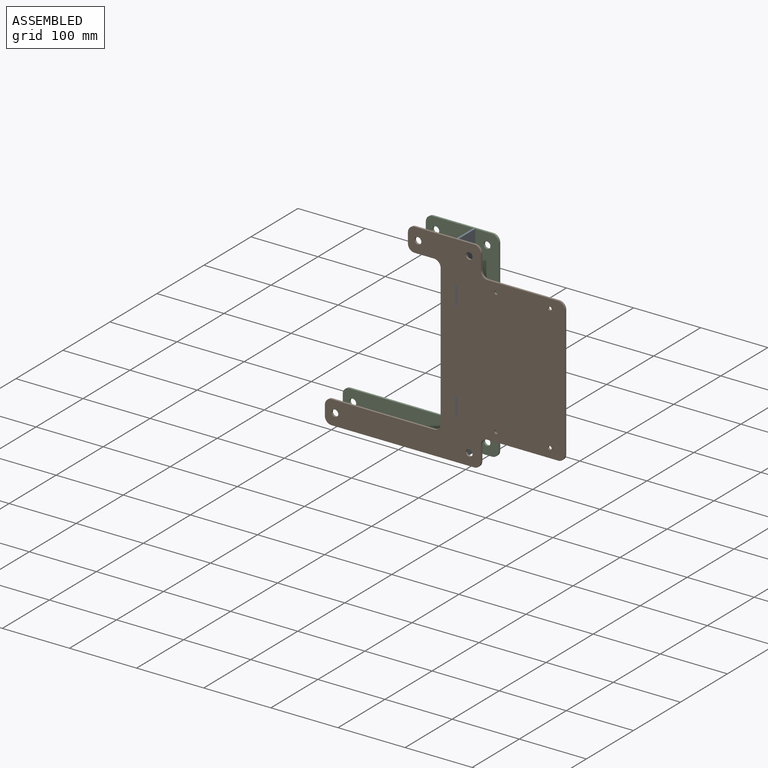
[diagram: assembled view]
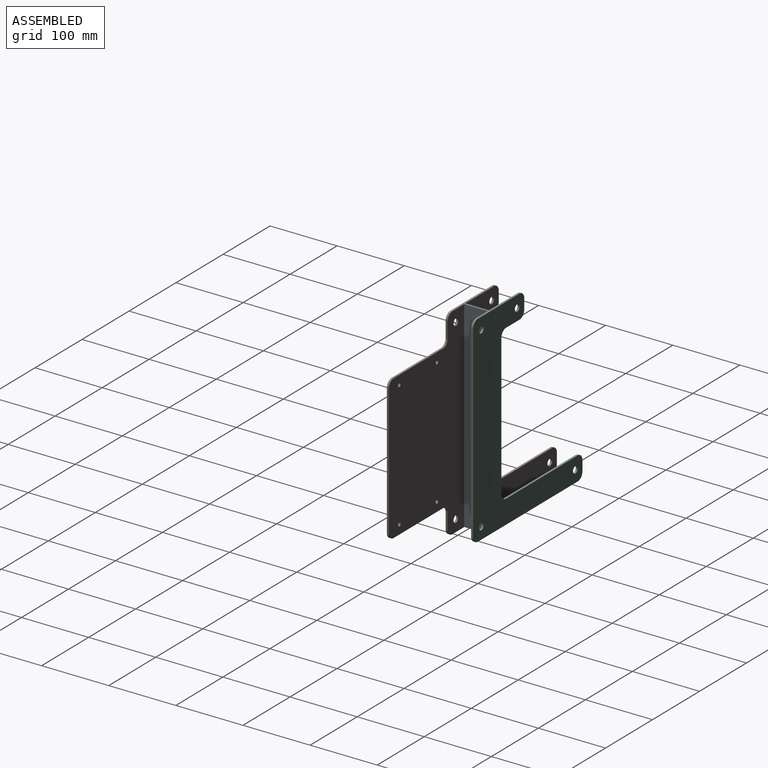
[diagram: assembled view, second angle]
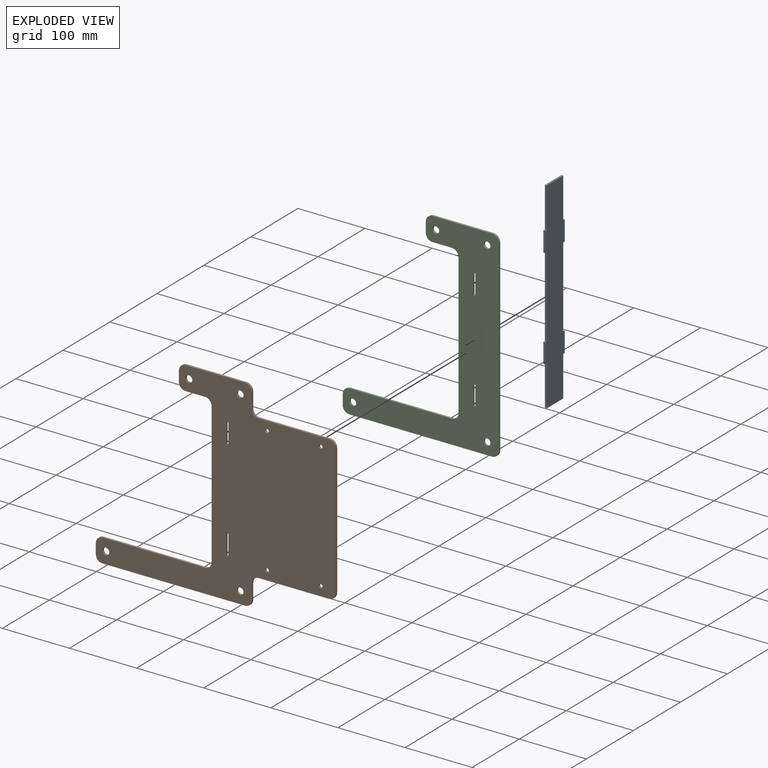
[diagram: exploded view]
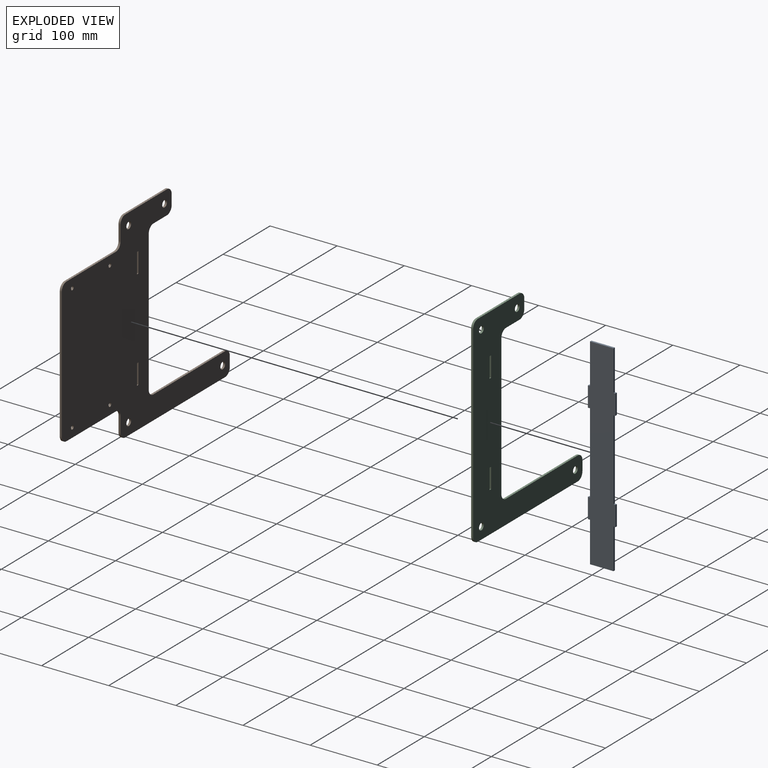
[diagram: exploded view, second angle]
ASSEMBLY  parts=3 mates=2
PART A: 22 faces, bbox 41x3x300 mm
  f0: plane 3x3mm, normal (0,0,1), area 9mm2, adj f1,f19,f20,f21
  f1: plane 30x3mm, normal (-1,0,0), area 90mm2, adj f0,f2,f20,f21
  f2: plane 3x3mm, normal (0,0,-1), area 9mm2, adj f1,f3,f20,f21
  f3: plane 60x3mm, normal (-1,0,0), area 180mm2, adj f2,f4,f20,f21
  f4: plane 35x3mm, normal (0,0,-1), area 105mm2, adj f3,f5,f20,f21
  f5: plane 60x3mm, normal (1,0,0), area 180mm2, adj f4,f6,f20,f21
  f6: plane 3x3mm, normal (0,0,-1), area 9mm2, adj f5,f7,f20,f21
  f7: plane 30x3mm, normal (1,0,0), area 90mm2, adj f6,f8,f20,f21
  f8: plane 3x3mm, normal (0,0,1), area 9mm2, adj f7,f9,f20,f21
  f9: plane 120x3mm, normal (1,0,0), area 360mm2, adj f8,f10,f20,f21
  f10: plane 3x3mm, normal (0,0,-1), area 9mm2, adj f9,f11,f20,f21
  f11: plane 30x3mm, normal (1,0,0), area 90mm2, adj f10,f12,f20,f21
  f12: plane 3x3mm, normal (0,0,1), area 9mm2, adj f11,f13,f20,f21
  f13: plane 60x3mm, normal (1,0,0), area 180mm2, adj f12,f14,f20,f21
  f14: plane 35x3mm, normal (0,0,1), area 105mm2, adj f13,f15,f20,f21
  f15: plane 60x3mm, normal (-1,0,0), area 180mm2, adj f14,f16,f20,f21
  f16: plane 3x3mm, normal (0,0,1), area 9mm2, adj f15,f17,f20,f21
  f17: plane 30x3mm, normal (-1,0,0), area 90mm2, adj f16,f18,f20,f21
  f18: plane 3x3mm, normal (0,0,-1), area 9mm2, adj f17,f19,f20,f21
  f19: plane 120x3mm, normal (-1,0,0), area 360mm2, adj f0,f18,f20,f21
  f20: plane 300x41mm, normal (0,-1,0), area 10860mm2, adj f0,f1,f2,f3,f4,f5,f6,f7
  f21: plane 300x41mm, normal (0,1,0), area 10860mm2, adj f0,f1,f2,f3,f4,f5,f6,f7
PART B: 42 faces, bbox 357.5x3x300.2 mm
  f0: cylinder r=10mm len=10mm, axis (0,1,0), area 47.1mm2, adj f1,f39,f40,f41
  f1: plane 28.76x3mm, normal (0,0,-1), area 86.3mm2, adj f0,f2,f40,f41
  f2: cylinder r=10mm len=10mm, axis (0,1,0), area 47.1mm2, adj f1,f3,f40,f41
  f3: plane 210.16x3mm, normal (-1,0,0), area 630.5mm2, adj f2,f4,f40,f41
  f4: cylinder r=10mm len=10mm, axis (0,1,0), area 47.1mm2, adj f3,f5,f40,f41
  f5: plane 152.5x3mm, normal (0,0,1), area 457.5mm2, adj f4,f6,f40,f41
  f6: cylinder r=10mm len=10mm, axis (0,1,0), area 47.1mm2, adj f5,f7,f40,f41
  f7: plane 15x3mm, normal (-1,0,0), area 45mm2, adj f6,f8,f40,f41
  f8: cylinder r=10mm len=10mm, axis (0,1,0), area 47.1mm2, adj f7,f9,f40,f41
  f9: plane 212.5x3mm, normal (0,0,-1), area 637.5mm2, adj f8,f10,f40,f41
  f10: cylinder r=10mm len=10mm, axis (0,1,0), area 47.1mm2, adj f9,f11,f40,f41
  f11: plane 22.58x3mm, normal (1,0,0), area 67.7mm2, adj f10,f12,f40,f41
  f12: cylinder r=10mm len=10mm, axis (0,1,0), area 47.1mm2, adj f11,f13,f40,f41
  f13: plane 105x3mm, normal (0,0,-1), area 315mm2, adj f12,f14,f40,f41
  f14: cylinder r=10mm len=10mm, axis (0,1,0), area 47.1mm2, adj f13,f15,f40,f41
  f15: plane 195x3mm, normal (1,0,0), area 585mm2, adj f14,f16,f40,f41
  f16: cylinder r=10mm len=10mm, axis (0,1,0), area 47.1mm2, adj f15,f17,f40,f41
  f17: plane 105x3mm, normal (0,0,1), area 315mm2, adj f16,f18,f40,f41
  f18: cylinder r=10mm len=10mm, axis (0,1,0), area 47.1mm2, adj f17,f19,f40,f41
  f19: plane 22.58x3mm, normal (1,0,0), area 67.7mm2, adj f18,f20,f40,f41
  f20: cylinder r=10mm len=10mm, axis (0,1,0), area 47.1mm2, adj f19,f21,f40,f41
  f21: plane 88.76x3mm, normal (0,0,1), area 266.3mm2, adj f20,f22,f40,f41
  f22: cylinder r=10mm len=10mm, axis (0,1,0), area 47.1mm2, adj f21,f39,f40,f41
  f23: plane 30.2x3mm, normal (-1,0,0), area 90.6mm2, adj f24,f37,f40,f41
  f24: plane 3.2x3mm, normal (0,0,1), area 9.6mm2, adj f23,f25,f40,f41
  f25: plane 30.2x3mm, normal (1,0,0), area 90.6mm2, adj f24,f37,f40,f41
  f26: plane 30.2x3mm, normal (-1,0,0), area 90.6mm2, adj f27,f38,f40,f41
  f27: plane 3.2x3mm, normal (0,0,1), area 9.6mm2, adj f26,f28,f40,f41
  f28: plane 30.2x3mm, normal (1,0,0), area 90.6mm2, adj f27,f38,f40,f41
  f29: cylinder r=5mm len=10mm, axis (0,1,0), area 94.2mm2, adj f40,f41
  f30: cylinder r=5mm len=10mm, axis (0,1,0), area 94.2mm2, adj f40,f41
  f31: cylinder r=5mm len=10mm, axis (0,1,0), area 94.2mm2, adj f40,f41
  f32: cylinder r=5mm len=10mm, axis (0,1,0), area 94.2mm2, adj f40,f41
  f33: cylinder r=2.75mm len=5.5mm, axis (0,1,0), area 51.8mm2, adj f40,f41
  f34: cylinder r=2.75mm len=5.5mm, axis (0,1,0), area 51.8mm2, adj f40,f41
  f35: cylinder r=2.75mm len=5.5mm, axis (0,1,0), area 51.8mm2, adj f40,f41
  f36: cylinder r=2.75mm len=5.5mm, axis (0,1,0), area 51.8mm2, adj f40,f41
  f37: plane 3.2x3mm, normal (0,0,-1), area 9.6mm2, adj f23,f25,f40,f41
  f38: plane 3.2x3mm, normal (0,0,-1), area 9.6mm2, adj f26,f28,f40,f41
  f39: plane 15x3mm, normal (-1,0,0), area 45mm2, adj f0,f22,f40,f41
  f40: plane 357.5x300.16mm, normal (0,-1,0), area 51940.5mm2, adj f0,f1,f2,f3,f4,f5,f6,f7
  f41: plane 357.5x300.16mm, normal (0,1,0), area 51940.5mm2, adj f0,f1,f2,f3,f4,f5,f6,f7
PART C: 30 faces, bbox 232.5x3x300.2 mm
  f0: plane 30.2x3mm, normal (-1,0,0), area 90.6mm2, adj f1,f24,f28,f29
  f1: plane 3.2x3mm, normal (0,0,1), area 9.6mm2, adj f0,f2,f28,f29
  f2: plane 30.2x3mm, normal (1,0,0), area 90.6mm2, adj f1,f24,f28,f29
  f3: plane 210.16x3mm, normal (-1,0,0), area 630.5mm2, adj f4,f25,f28,f29
  f4: cylinder r=10mm len=10mm, axis (0,1,0), area 47.1mm2, adj f3,f5,f28,f29
  f5: plane 152.5x3mm, normal (0,0,1), area 457.5mm2, adj f4,f6,f28,f29
  f6: cylinder r=10mm len=10mm, axis (0,1,0), area 47.1mm2, adj f5,f7,f28,f29
  f7: plane 15x3mm, normal (-1,0,0), area 45mm2, adj f6,f8,f28,f29
  f8: cylinder r=10mm len=10mm, axis (0,1,0), area 47.1mm2, adj f7,f9,f28,f29
  f9: plane 212.5x3mm, normal (0,0,-1), area 637.5mm2, adj f8,f10,f28,f29
  f10: cylinder r=10mm len=10mm, axis (0,1,0), area 47.1mm2, adj f9,f11,f28,f29
  f11: plane 280.16x3mm, normal (1,0,0), area 840.5mm2, adj f10,f12,f28,f29
  f12: cylinder r=10mm len=10mm, axis (0,1,0), area 47.1mm2, adj f11,f13,f28,f29
  f13: plane 88.76x3mm, normal (0,0,1), area 266.3mm2, adj f12,f14,f28,f29
  f14: cylinder r=10mm len=10mm, axis (0,1,0), area 47.1mm2, adj f13,f15,f28,f29
  f15: plane 15x3mm, normal (-1,0,0), area 45mm2, adj f14,f16,f28,f29
  f16: cylinder r=10mm len=10mm, axis (0,1,0), area 47.1mm2, adj f15,f17,f28,f29
  f17: plane 28.76x3mm, normal (0,0,-1), area 86.3mm2, adj f16,f25,f28,f29
  f18: plane 30.2x3mm, normal (-1,0,0), area 90.6mm2, adj f19,f26,f28,f29
  f19: plane 3.2x3mm, normal (0,0,1), area 9.6mm2, adj f18,f20,f28,f29
  f20: plane 30.2x3mm, normal (1,0,0), area 90.6mm2, adj f19,f26,f28,f29
  f21: cylinder r=5mm len=10mm, axis (0,1,0), area 94.2mm2, adj f28,f29
  f22: cylinder r=5mm len=10mm, axis (0,1,0), area 94.2mm2, adj f28,f29
  f23: cylinder r=5mm len=10mm, axis (0,1,0), area 94.2mm2, adj f28,f29
  f24: plane 3.2x3mm, normal (0,0,-1), area 9.6mm2, adj f0,f2,f28,f29
  f25: cylinder r=10mm len=10mm, axis (0,1,0), area 47.1mm2, adj f3,f17,f28,f29
  f26: plane 3.2x3mm, normal (0,0,-1), area 9.6mm2, adj f18,f20,f28,f29
  f27: cylinder r=5mm len=10mm, axis (0,1,0), area 94.2mm2, adj f28,f29
  f28: plane 300.16x232.5mm, normal (0,-1,0), area 25160.6mm2, adj f0,f1,f2,f3,f4,f5,f6,f7
  f29: plane 300.16x232.5mm, normal (0,1,0), area 25160.6mm2, adj f0,f1,f2,f3,f4,f5,f6,f7
PLACE A rot(axis=(0,0,1),90deg) t=(285.74,19,12.89)mm
PLACE B t=(306.34,1.5,-369.69)mm
PLACE C t=(306.34,39.5,-369.69)mm
MATE fastened A.f11 <-> C.f29  axis (0,1,0) through (287.24,39.5,87.89)mm
MATE fastened A.f17 <-> B.f40  axis (0,-1,0) through (287.24,-1.5,87.89)mm
